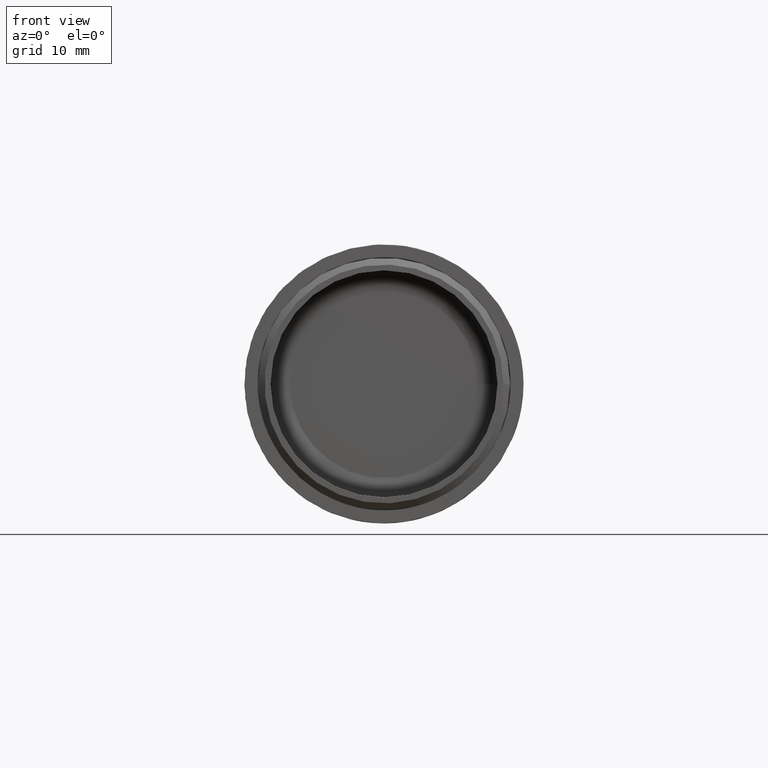
[diagram: clean part render]
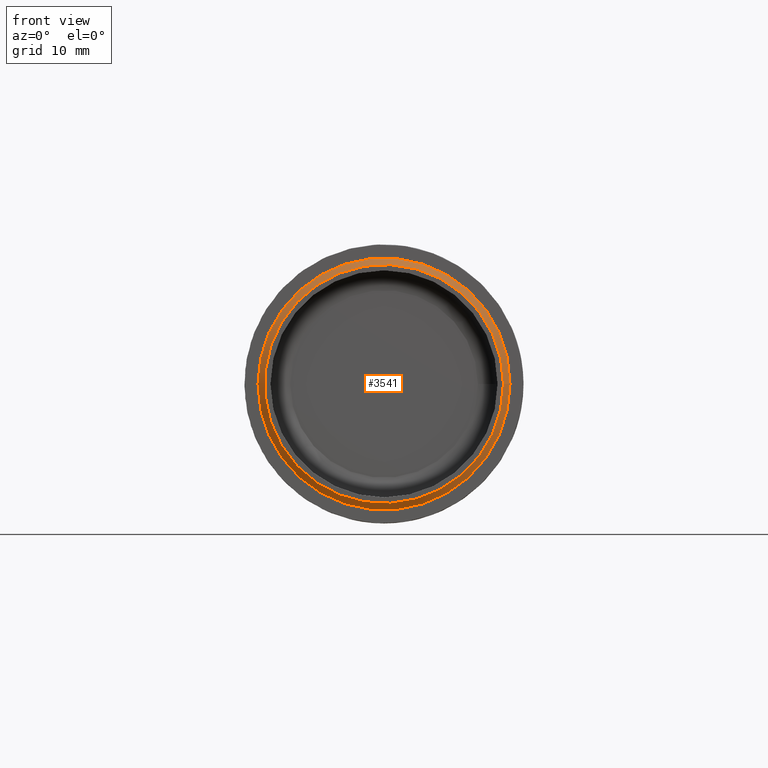
[diagram: same view with one face highlighted and labeled with its STEP entity id]
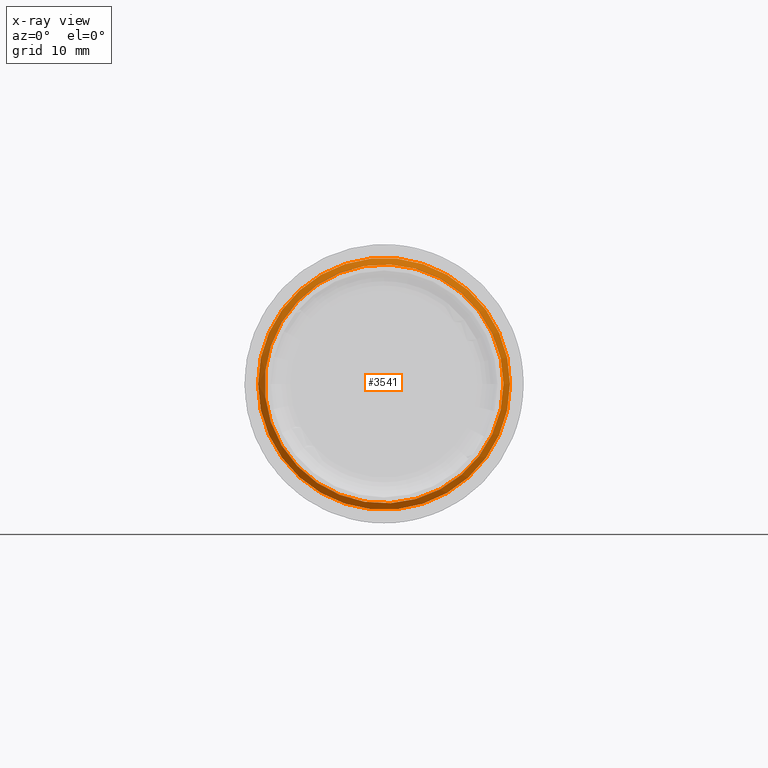
[diagram: x-ray of the same camera — body ghosted, the highlighted face saturated]
A machine part, front view. The second image highlights one B-rep face of the part: STEP entity #3541.
The next image is the same camera in x-ray: the body ghosted, the highlighted face saturated — about 0% of this face is hidden behind the body in this view.
In plain terms, the highlighted conical surface has half-angle 45 deg.
Its self-contained STEP definition (entity closure, byte-faithful):
#310 = AXIS2_PLACEMENT_3D ( 'NONE', #11881, #3242, #1820 ) ;
#938 = EDGE_LOOP ( 'NONE', ( #16862 ) ) ;
#1386 = DIRECTION ( 'NONE',  ( -1.000000000000000000, 0.0000000000000000000, 0.0000000000000000000 ) ) ;
#1820 = DIRECTION ( 'NONE',  ( 1.000000000000000000, 0.0000000000000000000, 0.0000000000000000000 ) ) ;
#2813 = CARTESIAN_POINT ( 'NONE',  ( 1.358921150969322700E-015, -20.00000000000000000, 0.0000000000000000000 ) ) ;
#3242 = DIRECTION ( 'NONE',  ( -6.794605754846611700E-017, 1.000000000000000000, 0.0000000000000000000 ) ) ;
#3541 = ADVANCED_FACE ( 'NONE', ( #5130, #7399 ), #12533, .T. ) ;
#4984 = CIRCLE ( 'NONE', #13640, 18.14999999999999900 ) ;
#5130 = FACE_OUTER_BOUND ( 'NONE', #6336, .T. ) ;
#6336 = EDGE_LOOP ( 'NONE', ( #13302 ) ) ;
#6961 = DIRECTION ( 'NONE',  ( 6.794605754846613000E-017, -1.000000000000000000, 0.0000000000000000000 ) ) ;
#7399 = FACE_BOUND ( 'NONE', #938, .T. ) ;
#8218 = VERTEX_POINT ( 'NONE', #15644 ) ;
#10609 = EDGE_CURVE ( 'NONE', #15811, #15811, #4984, .T. ) ;
#10950 = AXIS2_PLACEMENT_3D ( 'NONE', #2813, #15807, #1386 ) ;
#11881 = CARTESIAN_POINT ( 'NONE',  ( 1.290975093420855900E-015, -18.99999999999999300, 0.0000000000000000000 ) ) ;
#12533 = CONICAL_SURFACE ( 'NONE', #10950, 18.14999999999999900, 0.7853981633974431700 ) ;
#12750 = CARTESIAN_POINT ( 'NONE',  ( 1.358921150969322700E-015, -20.00000000000000000, 0.0000000000000000000 ) ) ;
#13302 = ORIENTED_EDGE ( 'NONE', *, *, #16813, .F. ) ;
#13640 = AXIS2_PLACEMENT_3D ( 'NONE', #12750, #6961, #16848 ) ;
#14318 = CIRCLE ( 'NONE', #310, 19.14999999999999900 ) ;
#15644 = CARTESIAN_POINT ( 'NONE',  ( 19.14999999999999900, -18.99999999999999300, 0.0000000000000000000 ) ) ;
#15807 = DIRECTION ( 'NONE',  ( -6.794605754846611700E-017, 1.000000000000000000, 0.0000000000000000000 ) ) ;
#15811 = VERTEX_POINT ( 'NONE', #18229 ) ;
#16813 = EDGE_CURVE ( 'NONE', #8218, #8218, #14318, .T. ) ;
#16848 = DIRECTION ( 'NONE',  ( 1.000000000000000000, 0.0000000000000000000, 0.0000000000000000000 ) ) ;
#16862 = ORIENTED_EDGE ( 'NONE', *, *, #10609, .F. ) ;
#18229 = CARTESIAN_POINT ( 'NONE',  ( 18.14999999999999900, -20.00000000000000000, 0.0000000000000000000 ) ) ;